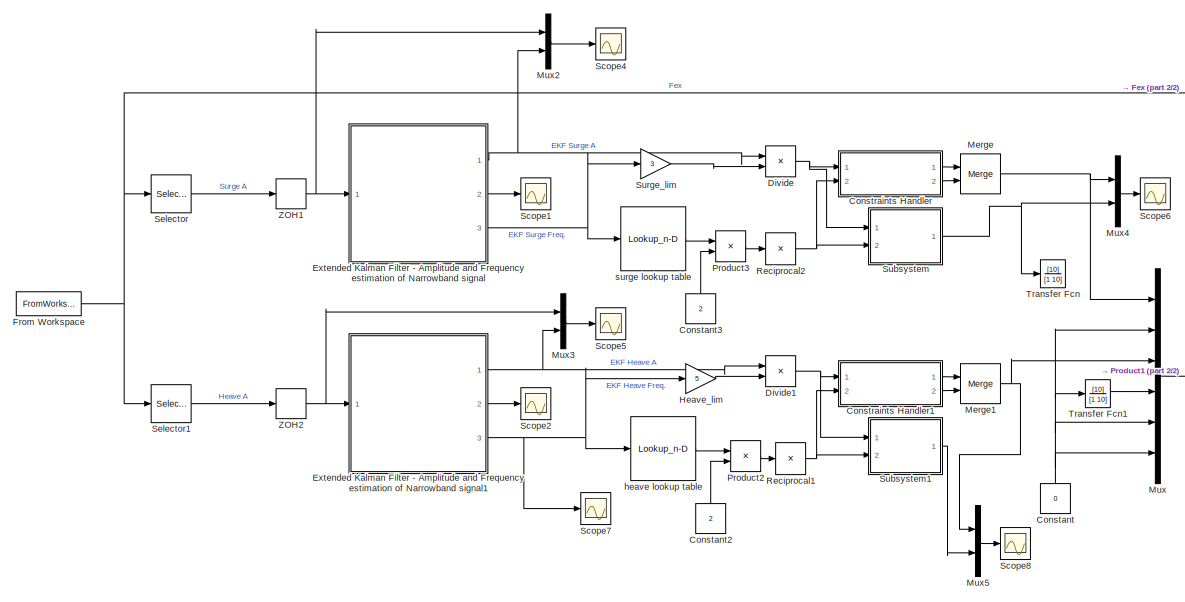
[diagram: root canvas - part 1/2, left side, full height]
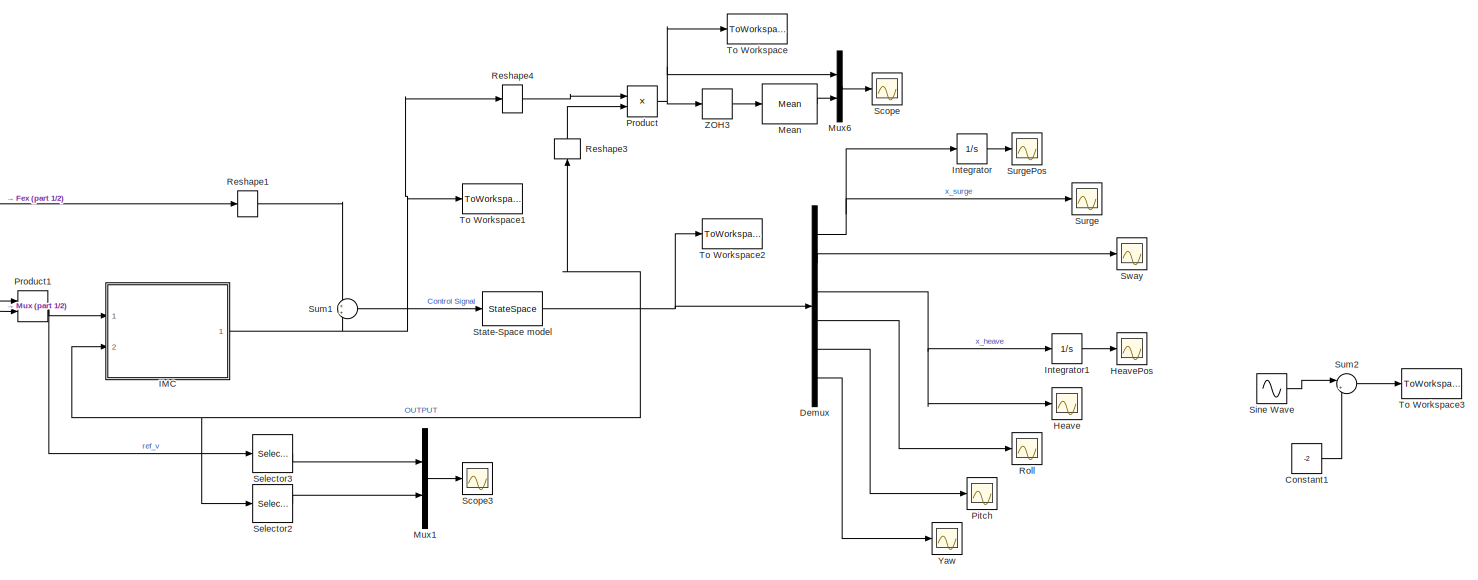
[diagram: root canvas - part 2/2, right side, full height]
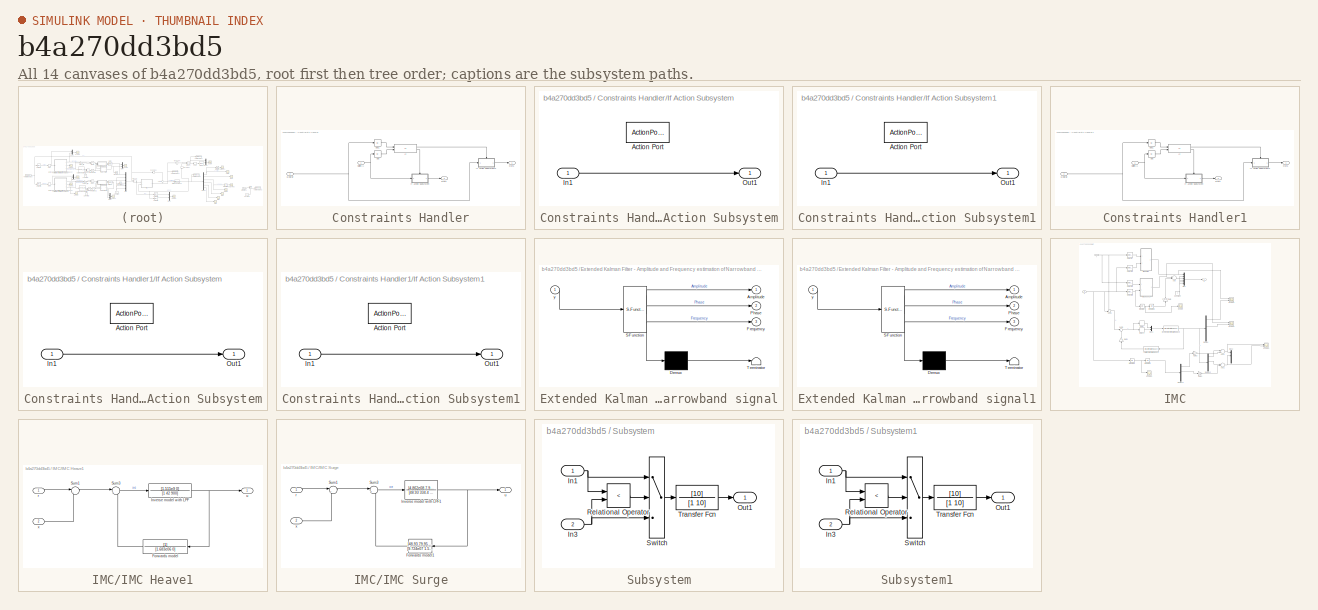
[diagram: thumbnail index - all 14 canvases of the model, root first then tree order]
MODEL slx_b4a270dd3bd5
KIND model
CONFIG AbsTol = auto
CONFIG EnableMultiTasking = on
CONFIG FixedStep = 0.02
CONFIG MaxStep = auto
CONFIG MinStep = auto
CONFIG RelTol = 1e-3
CONFIG SampleTimeConstraint = Unconstrained
CONFIG Solver = ode4
CONFIG SolverName = ode4
CONFIG StartTime = 0.0
CONFIG StopTime = 700
BLOCK [Constant] Constant
  Value = 0
BLOCK [Constant] Constant1
  Value = -2
BLOCK [Constant] Constant2
  Value = 2
BLOCK [Constant] Constant3
  Value = 2
BLOCK [SubSystem] Constraints Handler
  Ports = [2, 2]
  RequestExecContextInheritance = off
BLOCK [Inport] Constraints Handler/1//2B(w)
  IconDisplay = Port number
  Port = 2
BLOCK [Abs] Constraints Handler/Abs
  SaturateOnIntegerOverflow = off
BLOCK [Abs] Constraints Handler/Abs1
  SaturateOnIntegerOverflow = off
BLOCK [If] Constraints Handler/If
  IfExpression = u2>u1
  NumInputs = 2
  Ports = [2, 2]
BLOCK [SubSystem] Constraints Handler/If Action Subsystem
  Ports = [1, 1, 0, 0, 0, 0, 0, 1]
  RequestExecContextInheritance = off
  TreatAsAtomicUnit = on
BLOCK [ActionPort] Constraints Handler/If Action Subsystem/Action Port
  ActionType = else
BLOCK [Inport] Constraints Handler/If Action Subsystem/In1
  IconDisplay = Port number
BLOCK [Outport] Constraints Handler/If Action Subsystem/Out1
  IconDisplay = Port number
BLOCK [SubSystem] Constraints Handler/If Action Subsystem1
  Ports = [1, 1, 0, 0, 0, 0, 0, 1]
  RequestExecContextInheritance = off
  TreatAsAtomicUnit = on
BLOCK [ActionPort] Constraints Handler/If Action Subsystem1/Action Port
  ActionType = then
BLOCK [Inport] Constraints Handler/If Action Subsystem1/In1
  IconDisplay = Port number
BLOCK [Outport] Constraints Handler/If Action Subsystem1/Out1
  IconDisplay = Port number
BLOCK [Outport] Constraints Handler/Out1
  IconDisplay = Port number
BLOCK [Outport] Constraints Handler/Out2
  IconDisplay = Port number
  Port = 2
BLOCK [Inport] Constraints Handler/wXlim//A
  IconDisplay = Port number
BLOCK [SubSystem] Constraints Handler1
  Ports = [2, 2]
  RequestExecContextInheritance = off
BLOCK [Inport] Constraints Handler1/1//2B(w)
  IconDisplay = Port number
  Port = 2
BLOCK [Abs] Constraints Handler1/Abs
  SaturateOnIntegerOverflow = off
BLOCK [Abs] Constraints Handler1/Abs1
  SaturateOnIntegerOverflow = off
BLOCK [If] Constraints Handler1/If
  IfExpression = u2>u1
  NumInputs = 2
  Ports = [2, 2]
BLOCK [SubSystem] Constraints Handler1/If Action Subsystem
  Ports = [1, 1, 0, 0, 0, 0, 0, 1]
  RequestExecContextInheritance = off
  TreatAsAtomicUnit = on
BLOCK [ActionPort] Constraints Handler1/If Action Subsystem/Action Port
  ActionType = else
BLOCK [Inport] Constraints Handler1/If Action Subsystem/In1
  IconDisplay = Port number
BLOCK [Outport] Constraints Handler1/If Action Subsystem/Out1
  IconDisplay = Port number
BLOCK [SubSystem] Constraints Handler1/If Action Subsystem1
  Ports = [1, 1, 0, 0, 0, 0, 0, 1]
  RequestExecContextInheritance = off
  TreatAsAtomicUnit = on
BLOCK [ActionPort] Constraints Handler1/If Action Subsystem1/Action Port
  ActionType = then
BLOCK [Inport] Constraints Handler1/If Action Subsystem1/In1
  IconDisplay = Port number
BLOCK [Outport] Constraints Handler1/If Action Subsystem1/Out1
  IconDisplay = Port number
BLOCK [Outport] Constraints Handler1/Out1
  IconDisplay = Port number
BLOCK [Outport] Constraints Handler1/Out2
  IconDisplay = Port number
  Port = 2
BLOCK [Inport] Constraints Handler1/wXlim//A
  IconDisplay = Port number
BLOCK [Demux] Demux
  DisplayOption = bar
  Outputs = 6
  Ports = [1, 6]
BLOCK [Product] Divide
  InputSameDT = off
  Inputs = /*
  OutDataTypeStr = Inherit: Inherit via internal rule
  Ports = [2, 1]
  RndMeth = Floor
  SaturateOnIntegerOverflow = off
BLOCK [Product] Divide1
  InputSameDT = off
  Inputs = /*
  OutDataTypeStr = Inherit: Inherit via internal rule
  Ports = [2, 1]
  RndMeth = Floor
  SaturateOnIntegerOverflow = off
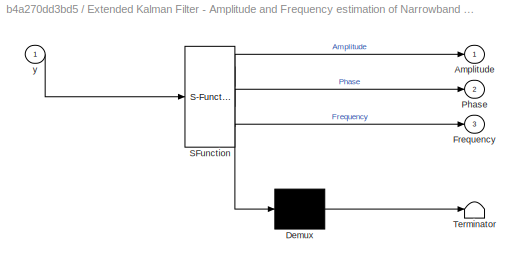
BLOCK [SubSystem] Extended Kalman Filter - Amplitude and Frequency estimation of Narrowband signal
  ErrorFcn = Stateflow.Translate.translate
  PermitHierarchicalResolution = ExplicitOnly
  Ports = [1, 3]
  RequestExecContextInheritance = off
  SFBlockType = MATLAB Function
  TreatAsAtomicUnit = on
BLOCK [Demux] Extended Kalman Filter - Amplitude and Frequency estimation of Narrowband signal/ Demux 
  Outputs = 1
  Ports = [1, 1]
BLOCK [S-Function] Extended Kalman Filter - Amplitude and Frequency estimation of Narrowband signal/ SFunction 
  EnableBusSupport = on
  FunctionName = sf_sfun
  PortCounts = [1 4]
  Ports = [1, 4]
  SFcnIsStateOwnerBlock = off
  SFunctionDeploymentMode = off
  Tag = Stateflow S-Function ANDY_position_control 1
BLOCK [Terminator] Extended Kalman Filter - Amplitude and Frequency estimation of Narrowband signal/ Terminator 
BLOCK [Outport] Extended Kalman Filter - Amplitude and Frequency estimation of Narrowband signal/Amplitude
  IconDisplay = Port number
BLOCK [Outport] Extended Kalman Filter - Amplitude and Frequency estimation of Narrowband signal/Frequency
  IconDisplay = Port number
  Port = 3
BLOCK [Outport] Extended Kalman Filter - Amplitude and Frequency estimation of Narrowband signal/Phase
  IconDisplay = Port number
  Port = 2
BLOCK [Inport] Extended Kalman Filter - Amplitude and Frequency estimation of Narrowband signal/y
  IconDisplay = Port number
BLOCK [SubSystem] Extended Kalman Filter - Amplitude and Frequency estimation of Narrowband signal1
  ErrorFcn = Stateflow.Translate.translate
  PermitHierarchicalResolution = ExplicitOnly
  Ports = [1, 3]
  RequestExecContextInheritance = off
  SFBlockType = MATLAB Function
  TreatAsAtomicUnit = on
BLOCK [Demux] Extended Kalman Filter - Amplitude and Frequency estimation of Narrowband signal1/ Demux 
  Outputs = 1
  Ports = [1, 1]
BLOCK [S-Function] Extended Kalman Filter - Amplitude and Frequency estimation of Narrowband signal1/ SFunction 
  EnableBusSupport = on
  FunctionName = sf_sfun
  PortCounts = [1 4]
  Ports = [1, 4]
  SFcnIsStateOwnerBlock = off
  SFunctionDeploymentMode = off
  Tag = Stateflow S-Function ANDY_position_control 2
BLOCK [Terminator] Extended Kalman Filter - Amplitude and Frequency estimation of Narrowband signal1/ Terminator 
BLOCK [Outport] Extended Kalman Filter - Amplitude and Frequency estimation of Narrowband signal1/Amplitude
  IconDisplay = Port number
BLOCK [Outport] Extended Kalman Filter - Amplitude and Frequency estimation of Narrowband signal1/Frequency
  IconDisplay = Port number
  Port = 3
BLOCK [Outport] Extended Kalman Filter - Amplitude and Frequency estimation of Narrowband signal1/Phase
  IconDisplay = Port number
  Port = 2
BLOCK [Inport] Extended Kalman Filter - Amplitude and Frequency estimation of Narrowband signal1/y
  IconDisplay = Port number
BLOCK [FromWorkspace] From Workspace
  SampleTime = 0
  VariableName = fex
  ZeroCross = on
BLOCK [Scope] Heave
  Floating = off
  NumInputPorts = 1
  Ports = [1]
  ScopeSpecificationString = Simulink.scopes.TimeScopeBlockCfg('CurrentConfiguration', extmgr.ConfigurationSet(extmgr.Configuration('Core','General UI',true),extmgr.Configuration('Core','Source UI',true),extmgr.Configuration('Sources','WiredSimulink',true,'DataLoggingVariableName','ScopeData1'),extmgr.Configuration('Visuals','Time Domain',true,'SerializedDisplays',{struct('MinYLimReal','-2.24543','MaxYLimReal','1.97438','YLab...<+1441ch>
BLOCK [Scope] HeavePos
  Floating = off
  NumInputPorts = 1
  Ports = [1]
  ScopeSpecificationString = Simulink.scopes.TimeScopeBlockCfg('CurrentConfiguration', extmgr.ConfigurationSet(extmgr.Configuration('Core','General UI',true),extmgr.Configuration('Core','Source UI',true),extmgr.Configuration('Sources','WiredSimulink',true,'DataLoggingVariableName','ScopeData1'),extmgr.Configuration('Visuals','Time Domain',true,'SerializedDisplays',{struct('MinYLimReal','-7.23213','MaxYLimReal','7.43866','YLab...<+1447ch>
BLOCK [Gain] Heave_lim
  Gain = 5
  OutDataTypeStr = Inherit: Inherit via internal rule
  ParamDataTypeStr = Inherit: Inherit via internal rule
  SaturateOnIntegerOverflow = off
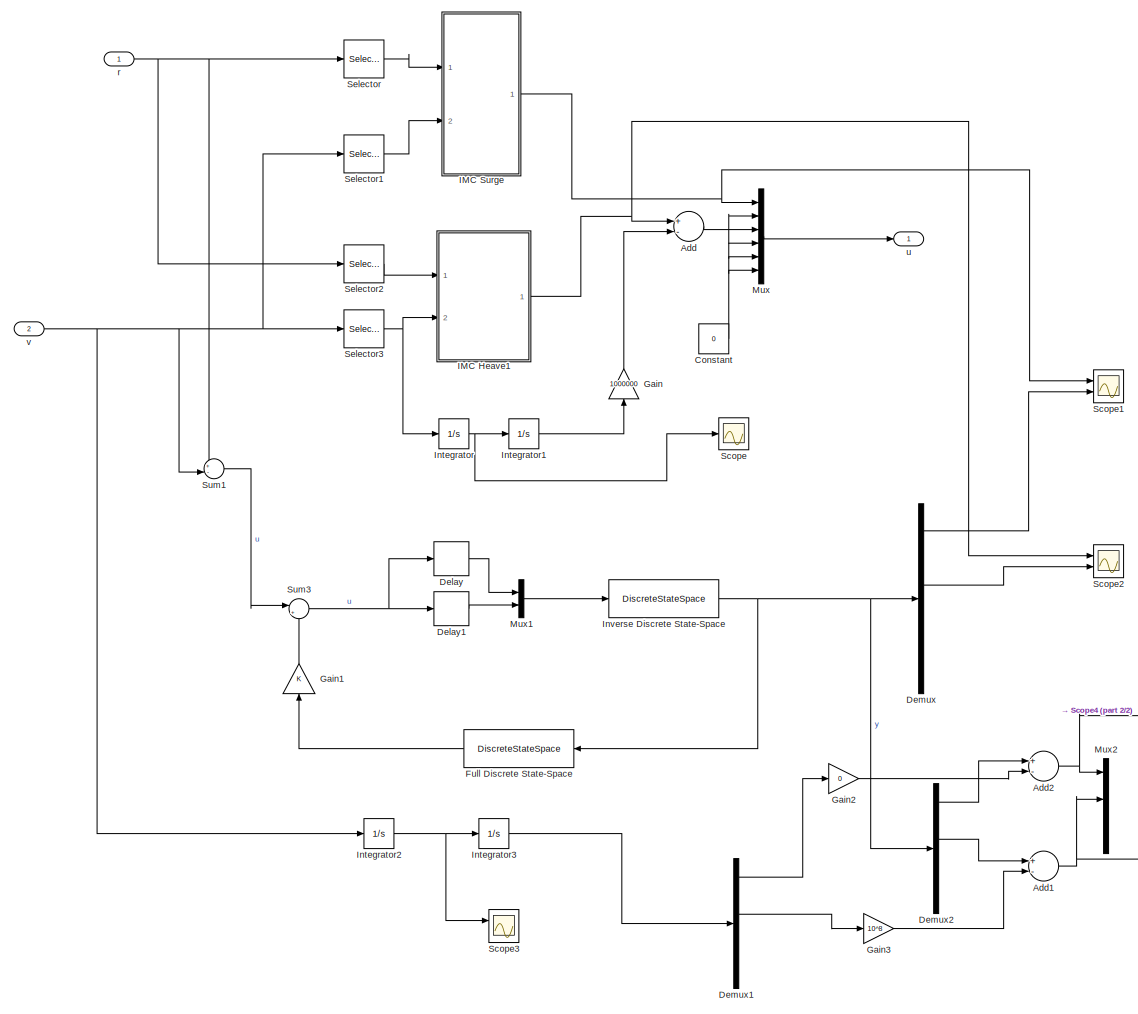
[diagram: IMC - part 1/2, most of the canvas]
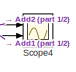
[diagram: IMC - part 2/2, bottom right region]
BLOCK [SubSystem] IMC
  Ports = [2, 1]
  RequestExecContextInheritance = off
BLOCK [Sum] IMC/Add
  InputSameDT = off
  Inputs = +-
  OutDataTypeStr = Inherit: Inherit via internal rule
  Ports = [2, 1]
  SaturateOnIntegerOverflow = off
BLOCK [Sum] IMC/Add1
  InputSameDT = off
  Inputs = +-
  OutDataTypeStr = Inherit: Inherit via internal rule
  Ports = [2, 1]
  SaturateOnIntegerOverflow = off
BLOCK [Sum] IMC/Add2
  InputSameDT = off
  Inputs = +-
  OutDataTypeStr = Inherit: Inherit via internal rule
  Ports = [2, 1]
  SaturateOnIntegerOverflow = off
BLOCK [Constant] IMC/Constant
  Value = 0
BLOCK [Delay] IMC/Delay
  DelayLength = 1
  InitialCondition = 0
  InputPortMap = u0
  Ports = [1, 1]
BLOCK [Delay] IMC/Delay1
  DelayLength = 0
  InitialCondition = 0
  InputPortMap = u0
  Ports = [1, 1]
BLOCK [Demux] IMC/Demux
  DisplayOption = bar
  Outputs = 6
  Ports = [1, 6]
BLOCK [Demux] IMC/Demux1
  DisplayOption = bar
  Outputs = 6
  Ports = [1, 6]
BLOCK [Demux] IMC/Demux2
  DisplayOption = bar
  Outputs = 6
  Ports = [1, 6]
BLOCK [DiscreteStateSpace] IMC/Full Discrete State-Space
  A = SS_discrete.A
  B = SS_discrete.B
  C = SS_discrete.C
  D = SS_discrete.D
  SampleTime = -1
BLOCK [Gain] IMC/Gain
  Gain = 1000000
  OutDataTypeStr = Inherit: Inherit via internal rule
  ParamDataTypeStr = Inherit: Inherit via internal rule
  SaturateOnIntegerOverflow = off
BLOCK [Gain] IMC/Gain1
  OutDataTypeStr = Inherit: Inherit via internal rule
  ParamDataTypeStr = Inherit: Inherit via internal rule
  SaturateOnIntegerOverflow = off
BLOCK [Gain] IMC/Gain2
  Gain = 0
  OutDataTypeStr = Inherit: Inherit via internal rule
  ParamDataTypeStr = Inherit: Inherit via internal rule
  SaturateOnIntegerOverflow = off
BLOCK [Gain] IMC/Gain3
  Gain = 10^8
  OutDataTypeStr = Inherit: Inherit via internal rule
  ParamDataTypeStr = Inherit: Inherit via internal rule
  SaturateOnIntegerOverflow = off
BLOCK [SubSystem] IMC/IMC Heave1
  Ports = [2, 1]
  RequestExecContextInheritance = off
BLOCK [TransferFcn] IMC/IMC Heave1/Forwards model
  Denominator = [1.683e06 0]
BLOCK [TransferFcn] IMC/IMC Heave1/Inverse model with LPF
  Denominator = [1 42 900]
  Numerator = [1.515e9 0]
BLOCK [Sum] IMC/IMC Heave1/Sum1
  IconShape = round
  Inputs = |+-
  Ports = [2, 1]
BLOCK [Sum] IMC/IMC Heave1/Sum3
  IconShape = round
  Inputs = |++
  Ports = [2, 1]
BLOCK [Inport] IMC/IMC Heave1/r
  IconDisplay = Port number
BLOCK [Outport] IMC/IMC Heave1/u
  IconDisplay = Port number
BLOCK [Inport] IMC/IMC Heave1/x
  IconDisplay = Port number
  Port = 2
BLOCK [SubSystem] IMC/IMC Surge
  Ports = [2, 1]
  RequestExecContextInheritance = off
BLOCK [TransferFcn] IMC/IMC Surge/Forwards model1
  Denominator = [9.724e07 1.592e08 5.128e08 4.252e08 6.336e08 2.016e08 2.093e08]
  Numerator = [48.93 79.95 216.2 144.3 149.5 0]
BLOCK [TransferFcn] IMC/IMC Surge/Inverse model with LPF1
  Denominator = [48.93 334.4 680.9 1349 1116 921.6 149.5 0]
  Numerator = [4.862e08 7.959e08 2.564e09 2.126e09 3.168e09 1.008e09 1.046e09 0]
BLOCK [Sum] IMC/IMC Surge/Sum1
  IconShape = round
  Inputs = |+-
  Ports = [2, 1]
BLOCK [Sum] IMC/IMC Surge/Sum3
  IconShape = round
  Inputs = |++
  Ports = [2, 1]
BLOCK [Inport] IMC/IMC Surge/r
  IconDisplay = Port number
BLOCK [Outport] IMC/IMC Surge/u
  IconDisplay = Port number
BLOCK [Inport] IMC/IMC Surge/x
  IconDisplay = Port number
  Port = 2
BLOCK [Integrator] IMC/Integrator
  Ports = [1, 1]
BLOCK [Integrator] IMC/Integrator1
  Ports = [1, 1]
BLOCK [Integrator] IMC/Integrator2
  Ports = [1, 1]
BLOCK [Integrator] IMC/Integrator3
  Ports = [1, 1]
BLOCK [DiscreteStateSpace] IMC/Inverse Discrete State-Space
  A = SS_inverse.A
  B = SS_inverse.B
  C = SS_inverse.C
  D = SS_inverse.D
  SampleTime = -1
BLOCK [Mux] IMC/Mux
  DisplayOption = bar
  Inputs = 6
  Ports = [6, 1]
BLOCK [Mux] IMC/Mux1
  DisplayOption = bar
  Inputs = 2
  Ports = [2, 1]
BLOCK [Mux] IMC/Mux2
  DisplayOption = bar
  Inputs = 6
  Ports = [6, 1]
BLOCK [Scope] IMC/Scope
  Floating = off
  NumInputPorts = 1
  Ports = [1]
  ScopeSpecificationString = Simulink.scopes.TimeScopeBlockCfg('CurrentConfiguration', extmgr.ConfigurationSet(extmgr.Configuration('Core','General UI',true),extmgr.Configuration('Core','Source UI',true),extmgr.Configuration('Sources','WiredSimulink',true,'DataLoggingVariableName','ScopeData1'),extmgr.Configuration('Visuals','Time Domain',true,'SerializedDisplays',{struct('MinYLimReal','-7.23213','MaxYLimReal','7.43866','YLab...<+1369ch>
BLOCK [Scope] IMC/Scope1
  Floating = off
  NumInputPorts = 2
  Ports = [2]
  ScopeSpecificationString = Simulink.scopes.TimeScopeBlockCfg('CurrentConfiguration', extmgr.ConfigurationSet(extmgr.Configuration('Core','General UI',true),extmgr.Configuration('Core','Source UI',true),extmgr.Configuration('Sources','WiredSimulink',true,'DataLoggingVariableName','ScopeData1'),extmgr.Configuration('Visuals','Time Domain',true,'SerializedDisplays',{struct('MinYLimReal','-16694056104.24837','MaxYLimReal','1079...<+1518ch>
BLOCK [Scope] IMC/Scope2
  Floating = off
  NumInputPorts = 2
  Ports = [2]
  ScopeSpecificationString = Simulink.scopes.TimeScopeBlockCfg('CurrentConfiguration', extmgr.ConfigurationSet(extmgr.Configuration('Core','General UI',true),extmgr.Configuration('Core','Source UI',true),extmgr.Configuration('Sources','WiredSimulink',true,'DataLoggingVariableName','ScopeData2'),extmgr.Configuration('Visuals','Time Domain',true,'SerializedDisplays',{struct('MinYLimReal','-237250496500.61111','MaxYLimReal','264...<+1521ch>
BLOCK [Scope] IMC/Scope3
  Floating = off
  NumInputPorts = 2
  Ports = [2]
  ScopeSpecificationString = Simulink.scopes.TimeScopeBlockCfg('CurrentConfiguration', extmgr.ConfigurationSet(extmgr.Configuration('Core','General UI',true),extmgr.Configuration('Core','Source UI',true),extmgr.Configuration('Sources','WiredSimulink',true,'DataLoggingVariableName','ScopeData3'),extmgr.Configuration('Visuals','Time Domain',true,'SerializedDisplays',{struct('MinYLimReal','-7.23213','MaxYLimReal','7.43866','YLab...<+1522ch>
BLOCK [Scope] IMC/Scope4
  Floating = off
  NumInputPorts = 2
  Ports = [2]
  ScopeSpecificationString = Simulink.scopes.TimeScopeBlockCfg('CurrentConfiguration', extmgr.ConfigurationSet(extmgr.Configuration('Core','General UI',true),extmgr.Configuration('Core','Source UI',true),extmgr.Configuration('Sources','WiredSimulink',true,'DataLoggingVariableName','ScopeData4'),extmgr.Configuration('Visuals','Time Domain',true,'SerializedDisplays',{struct('MinYLimReal','-246543197203.57385','MaxYLimReal','133...<+1514ch>
BLOCK [Selector] IMC/Selector
  IndexOptions = Index vector (dialog)
  Indices = [1]
  InputPortWidth = 6
  OutputSizes = 1
  Ports = [1, 1]
BLOCK [Selector] IMC/Selector1
  IndexOptions = Index vector (dialog)
  Indices = [1]
  InputPortWidth = 6
  OutputSizes = 1
  Ports = [1, 1]
BLOCK [Selector] IMC/Selector2
  IndexOptions = Index vector (dialog)
  Indices = [3]
  InputPortWidth = 6
  OutputSizes = 1
  Ports = [1, 1]
BLOCK [Selector] IMC/Selector3
  IndexOptions = Index vector (dialog)
  Indices = [3]
  InputPortWidth = 6
  OutputSizes = 1
  Ports = [1, 1]
BLOCK [Sum] IMC/Sum1
  IconShape = round
  InputSameDT = off
  Inputs = +-|
  OutDataTypeStr = Inherit: Inherit via internal rule
  Ports = [2, 1]
  SaturateOnIntegerOverflow = off
BLOCK [Sum] IMC/Sum3
  IconShape = round
  InputSameDT = off
  Inputs = |++
  OutDataTypeStr = Inherit: Inherit via internal rule
  Ports = [2, 1]
  SaturateOnIntegerOverflow = off
BLOCK [Inport] IMC/r
  IconDisplay = Port number
BLOCK [Outport] IMC/u
  IconDisplay = Port number
BLOCK [Inport] IMC/v
  IconDisplay = Port number
  Port = 2
BLOCK [Integrator] Integrator
  Ports = [1, 1]
BLOCK [Integrator] Integrator1
  Ports = [1, 1]
BLOCK [Reference] Mean  REF=dspstat3/Mean
  Ports = [1, 1]
  SourceBlock = dspstat3/Mean
  SourceProductBaseCode = DS
  SourceProductName = DSP System Toolbox
  SourceType = Mean
  UserDataPersistent = on
BLOCK [Merge] Merge
  Ports = [2, 1]
BLOCK [Merge] Merge1
  Ports = [2, 1]
BLOCK [Mux] Mux
  DisplayOption = bar
  Inputs = 6
  Ports = [6, 1]
BLOCK [Mux] Mux1
  DisplayOption = bar
  Inputs = 2
  Ports = [2, 1]
BLOCK [Mux] Mux2
  DisplayOption = bar
  Inputs = 2
  Ports = [2, 1]
BLOCK [Mux] Mux3
  DisplayOption = bar
  Inputs = 2
  Ports = [2, 1]
BLOCK [Mux] Mux4
  DisplayOption = bar
  Inputs = 2
  Ports = [2, 1]
BLOCK [Mux] Mux5
  DisplayOption = bar
  Inputs = 2
  Ports = [2, 1]
BLOCK [Mux] Mux6
  DisplayOption = bar
  Inputs = 2
  Ports = [2, 1]
BLOCK [Scope] Pitch
  Floating = off
  NumInputPorts = 1
  Ports = [1]
  ScopeSpecificationString = Simulink.scopes.TimeScopeBlockCfg('CurrentConfiguration', extmgr.ConfigurationSet(extmgr.Configuration('Core','General UI',true),extmgr.Configuration('Core','Source UI',true),extmgr.Configuration('Sources','WiredSimulink',true,'DataLoggingVariableName','ScopeData2'),extmgr.Configuration('Visuals','Time Domain',true,'SerializedDisplays',{struct('MinYLimReal','-0.00595','MaxYLimReal','0.00682','YLab...<+1410ch>
BLOCK [Product] Product
  InputSameDT = off
  Multiplication = Matrix(*)
  OutDataTypeStr = Inherit: Inherit via internal rule
  Ports = [2, 1]
  RndMeth = Floor
  SaturateOnIntegerOverflow = off
BLOCK [Product] Product1
  InputSameDT = off
  OutDataTypeStr = Inherit: Inherit via internal rule
  Ports = [2, 1]
  RndMeth = Floor
  SaturateOnIntegerOverflow = off
BLOCK [Product] Product2
  InputSameDT = off
  OutDataTypeStr = Inherit: Inherit via internal rule
  Ports = [2, 1]
  RndMeth = Floor
  SaturateOnIntegerOverflow = off
BLOCK [Product] Product3
  InputSameDT = off
  OutDataTypeStr = Inherit: Inherit via internal rule
  Ports = [2, 1]
  RndMeth = Floor
  SaturateOnIntegerOverflow = off
BLOCK [Product] Reciprocal1
  InputSameDT = off
  Inputs = /
  OutDataTypeStr = Inherit: Inherit via internal rule
  Ports = [1, 1]
  RndMeth = Floor
  SaturateOnIntegerOverflow = off
BLOCK [Product] Reciprocal2
  InputSameDT = off
  Inputs = /
  OutDataTypeStr = Inherit: Inherit via internal rule
  Ports = [1, 1]
  RndMeth = Floor
  SaturateOnIntegerOverflow = off
BLOCK [Reshape] Reshape1
  OutputDimensionality = Column vector (2-D)
  Ports = [1, 1]
BLOCK [Reshape] Reshape3
  OutputDimensionality = Column vector (2-D)
  Ports = [1, 1]
BLOCK [Reshape] Reshape4
  OutputDimensionality = Row vector (2-D)
  Ports = [1, 1]
BLOCK [Scope] Roll
  Floating = off
  NumInputPorts = 1
  Ports = [1]
  ScopeSpecificationString = Simulink.scopes.TimeScopeBlockCfg('CurrentConfiguration', extmgr.ConfigurationSet(extmgr.Configuration('Core','General UI',true),extmgr.Configuration('Core','Source UI',true),extmgr.Configuration('Sources','WiredSimulink',true,'DataLoggingVariableName','ScopeData2'),extmgr.Configuration('Visuals','Time Domain',true,'SerializedDisplays',{struct('MinYLimReal','-0.01689','MaxYLimReal','0.01142','YLab...<+1385ch>
BLOCK [Scope] Scope
  Floating = off
  NumInputPorts = 1
  Ports = [1]
  ScopeSpecificationString = Simulink.scopes.TimeScopeBlockCfg('CurrentConfiguration', extmgr.ConfigurationSet(extmgr.Configuration('Core','General UI',true),extmgr.Configuration('Core','Source UI',true),extmgr.Configuration('Sources','WiredSimulink',true,'DataLoggingVariableName','ScopeData1'),extmgr.Configuration('Visuals','Time Domain',true,'SerializedDisplays',{struct('MinYLimReal','-15685283.61877','MaxYLimReal','1171424...<+1530ch>
BLOCK [Scope] Scope1
  Floating = off
  NumInputPorts = 1
  Ports = [1]
  ScopeSpecificationString = Simulink.scopes.TimeScopeBlockCfg('CurrentConfiguration', extmgr.ConfigurationSet(extmgr.Configuration('Core','General UI',true),extmgr.Configuration('Core','Source UI',true),extmgr.Configuration('Sources','WiredSimulink',true,'DataLoggingVariableName','ScopeData1','DataLoggingSaveFormat','StructureWithTime','DataLoggingDecimation','1','DataLoggingDecimateData',true),extmgr.Configuration('Visuals'...<+1861ch>
BLOCK [Scope] Scope2
  Floating = off
  NumInputPorts = 1
  Ports = [1]
  ScopeSpecificationString = Simulink.scopes.TimeScopeBlockCfg('CurrentConfiguration', extmgr.ConfigurationSet(extmgr.Configuration('Core','General UI',true),extmgr.Configuration('Core','Source UI',true),extmgr.Configuration('Sources','WiredSimulink',true,'DataLoggingVariableName','ScopeData1','DataLoggingSaveFormat','StructureWithTime','DataLoggingDecimation','1','DataLoggingDecimateData',true),extmgr.Configuration('Visuals'...<+1861ch>
BLOCK [Scope] Scope3
  Floating = off
  NumInputPorts = 1
  Ports = [1]
  ScopeSpecificationString = Simulink.scopes.TimeScopeBlockCfg('CurrentConfiguration', extmgr.ConfigurationSet(extmgr.Configuration('Core','General UI',true),extmgr.Configuration('Core','Source UI',true),extmgr.Configuration('Sources','WiredSimulink',true,'DataLoggingVariableName','ScopeData1'),extmgr.Configuration('Visuals','Time Domain',true,'SerializedDisplays',{struct('MinYLimReal','-3.63088','MaxYLimReal','3.05574','YLab...<+1462ch>
BLOCK [Scope] Scope4
  Floating = off
  NumInputPorts = 1
  Ports = [1]
  ScopeSpecificationString = Simulink.scopes.TimeScopeBlockCfg('CurrentConfiguration', extmgr.ConfigurationSet(extmgr.Configuration('Core','General UI',true),extmgr.Configuration('Core','Source UI',true),extmgr.Configuration('Sources','WiredSimulink',true,'DataLoggingVariableName','ScopeData2','DataLoggingSaveFormat','StructureWithTime','DataLoggingDecimation','1','DataLoggingDecimateData',true),extmgr.Configuration('Visuals'...<+1793ch>
BLOCK [Scope] Scope5
  Floating = off
  NumInputPorts = 1
  Ports = [1]
  ScopeSpecificationString = Simulink.scopes.TimeScopeBlockCfg('CurrentConfiguration', extmgr.ConfigurationSet(extmgr.Configuration('Core','General UI',true),extmgr.Configuration('Core','Source UI',true),extmgr.Configuration('Sources','WiredSimulink',true,'DataLoggingVariableName','ScopeData3','DataLoggingSaveFormat','StructureWithTime','DataLoggingDecimation','1','DataLoggingDecimateData',true),extmgr.Configuration('Visuals'...<+1793ch>
BLOCK [Scope] Scope6
  Floating = off
  NumInputPorts = 1
  Ports = [1]
  ScopeSpecificationString = Simulink.scopes.TimeScopeBlockCfg('CurrentConfiguration', extmgr.ConfigurationSet(extmgr.Configuration('Core','General UI',true),extmgr.Configuration('Core','Source UI',true),extmgr.Configuration('Sources','WiredSimulink',true,'DataLoggingVariableName','ScopeData4','DataLoggingSaveFormat','StructureWithTime','DataLoggingDecimation','1','DataLoggingDecimateData',true),extmgr.Configuration('Visuals'...<+1761ch>
BLOCK [Scope] Scope7
  Floating = off
  NumInputPorts = 1
  Ports = [1]
  ScopeSpecificationString = Simulink.scopes.TimeScopeBlockCfg('CurrentConfiguration', extmgr.ConfigurationSet(extmgr.Configuration('Core','General UI',true),extmgr.Configuration('Core','Source UI',true),extmgr.Configuration('Sources','WiredSimulink',true,'DataLoggingVariableName','ScopeData5','DataLoggingSaveFormat','StructureWithTime','DataLoggingDecimation','1','DataLoggingDecimateData',true),extmgr.Configuration('Visuals'...<+1744ch>
BLOCK [Scope] Scope8
  Floating = off
  NumInputPorts = 1
  Ports = [1]
  ScopeSpecificationString = Simulink.scopes.TimeScopeBlockCfg('CurrentConfiguration', extmgr.ConfigurationSet(extmgr.Configuration('Core','General UI',true),extmgr.Configuration('Core','Source UI',true),extmgr.Configuration('Sources','WiredSimulink',true,'DataLoggingVariableName','ScopeData6','DataLoggingSaveFormat','StructureWithTime','DataLoggingDecimation','1','DataLoggingDecimateData',true),extmgr.Configuration('Visuals'...<+1764ch>
BLOCK [Selector] Selector
  IndexOptions = Index vector (dialog)
  Indices = 1
  InputPortWidth = 6
  OutputSizes = 1
  Ports = [1, 1]
BLOCK [Selector] Selector1
  IndexOptions = Index vector (dialog)
  Indices = 3
  InputPortWidth = 6
  OutputSizes = 1
  Ports = [1, 1]
BLOCK [Selector] Selector2
  IndexOptions = Index vector (dialog)
  Indices = [1 3]
  InputPortWidth = 6
  OutputSizes = 1
  Ports = [1, 1]
BLOCK [Selector] Selector3
  IndexOptions = Index vector (dialog)
  Indices = [1 3]
  InputPortWidth = 6
  OutputSizes = 1
  Ports = [1, 1]
BLOCK [Sin] Sine Wave
  Ports = [0, 1]
  SampleTime = 0
BLOCK [StateSpace] State-Space model
  A = SS_full.A
  B = SS_full.B
  C = SS_full.C
  D = SS_full.D
  InitialCondition = 0
  Ports = [1, 1]
BLOCK [SubSystem] Subsystem
  Ports = [2, 1]
  RequestExecContextInheritance = off
BLOCK [Inport] Subsystem/In1
  IconDisplay = Port number
BLOCK [Inport] Subsystem/In3
  IconDisplay = Port number
  Port = 2
BLOCK [Outport] Subsystem/Out1
  IconDisplay = Port number
BLOCK [RelationalOperator] Subsystem/Relational Operator
  InputSameDT = off
  Operator = <
  OutDataTypeStr = boolean
  Ports = [2, 1]
BLOCK [Switch] Subsystem/Switch
  Criteria = u2 > Threshold
  InputSameDT = off
  SaturateOnIntegerOverflow = off
BLOCK [TransferFcn] Subsystem/Transfer Fcn
  Denominator = [1 10]
  Numerator = [10]
BLOCK [SubSystem] Subsystem1
  Ports = [2, 1]
  RequestExecContextInheritance = off
BLOCK [Inport] Subsystem1/In1
  IconDisplay = Port number
BLOCK [Inport] Subsystem1/In3
  IconDisplay = Port number
  Port = 2
BLOCK [Outport] Subsystem1/Out1
  IconDisplay = Port number
BLOCK [RelationalOperator] Subsystem1/Relational Operator
  InputSameDT = off
  Operator = <
  OutDataTypeStr = boolean
  Ports = [2, 1]
BLOCK [Switch] Subsystem1/Switch
  Criteria = u2 > Threshold
  InputSameDT = off
  SaturateOnIntegerOverflow = off
BLOCK [TransferFcn] Subsystem1/Transfer Fcn
  Denominator = [1 10]
  Numerator = [10]
BLOCK [Sum] Sum1
  IconShape = round
  InputSameDT = off
  OutDataTypeStr = Inherit: Inherit via internal rule
  Ports = [2, 1]
  SaturateOnIntegerOverflow = off
BLOCK [Sum] Sum2
  IconShape = round
  InputSameDT = off
  Inputs = |++
  OutDataTypeStr = Inherit: Inherit via internal rule
  Ports = [2, 1]
  SaturateOnIntegerOverflow = off
BLOCK [Scope] Surge
  Floating = off
  NumInputPorts = 1
  Ports = [1]
  ScopeSpecificationString = Simulink.scopes.TimeScopeBlockCfg('CurrentConfiguration', extmgr.ConfigurationSet(extmgr.Configuration('Core','General UI',true),extmgr.Configuration('Core','Source UI',true),extmgr.Configuration('Sources','WiredSimulink',true),extmgr.Configuration('Visuals','Time Domain',true,'SerializedDisplays',{struct('MinYLimReal','-4.03001','MaxYLimReal','3.94243','YLabelReal','','MinYLimMag','0.00000','MaxY...<+1404ch>
BLOCK [Scope] SurgePos
  Floating = off
  NumInputPorts = 1
  Ports = [1]
  ScopeSpecificationString = Simulink.scopes.TimeScopeBlockCfg('CurrentConfiguration', extmgr.ConfigurationSet(extmgr.Configuration('Core','General UI',true),extmgr.Configuration('Core','Source UI',true),extmgr.Configuration('Sources','WiredSimulink',true,'DataLoggingVariableName','ScopeData2'),extmgr.Configuration('Visuals','Time Domain',true,'SerializedDisplays',{struct('MinYLimReal','-6.60203','MaxYLimReal','13.87755','YLa...<+1450ch>
BLOCK [Gain] Surge_lim
  Gain = 3
  OutDataTypeStr = Inherit: Inherit via internal rule
  ParamDataTypeStr = Inherit: Inherit via internal rule
  SaturateOnIntegerOverflow = off
BLOCK [Scope] Sway
  Floating = off
  NumInputPorts = 1
  Ports = [1]
  ScopeSpecificationString = Simulink.scopes.TimeScopeBlockCfg('CurrentConfiguration', extmgr.ConfigurationSet(extmgr.Configuration('Core','General UI',true),extmgr.Configuration('Core','Source UI',true),extmgr.Configuration('Sources','WiredSimulink',true,'DataLoggingVariableName','ScopeData1'),extmgr.Configuration('Visuals','Time Domain',true,'SerializedDisplays',{struct('MinYLimReal','-0.44361','MaxYLimReal','0.59812','YLab...<+1385ch>
BLOCK [ToWorkspace] To Workspace
  FixptAsFi = on
  MaxDataPoints = inf
  Ports = [1]
  SampleTime = -1
  Save2DSignal = 3-D array (concatenate along third dimension)
  SaveFormat = Timeseries
  VariableName = totalPower
BLOCK [ToWorkspace] To Workspace1
  FixptAsFi = on
  MaxDataPoints = inf
  Ports = [1]
  SampleTime = -1
  Save2DSignal = 3-D array (concatenate along third dimension)
  SaveFormat = Timeseries
  VariableName = controlSignal
BLOCK [ToWorkspace] To Workspace2
  FixptAsFi = on
  MaxDataPoints = inf
  Ports = [1]
  SampleTime = -1
  Save2DSignal = 3-D array (concatenate along third dimension)
  SaveFormat = Timeseries
  VariableName = outputSignal
BLOCK [ToWorkspace] To Workspace3
  FixptAsFi = on
  MaxDataPoints = inf
  Ports = [1]
  SampleTime = -1
  Save2DSignal = 3-D array (concatenate along third dimension)
  SaveFormat = Timeseries
  VariableName = testSignal
BLOCK [TransferFcn] Transfer Fcn
  Denominator = [1 10]
  Numerator = [10]
BLOCK [TransferFcn] Transfer Fcn1
  Denominator = [1 10]
  Numerator = [10]
BLOCK [Scope] Yaw
  Floating = off
  NumInputPorts = 1
  Ports = [1]
  ScopeSpecificationString = Simulink.scopes.TimeScopeBlockCfg('CurrentConfiguration', extmgr.ConfigurationSet(extmgr.Configuration('Core','General UI',true),extmgr.Configuration('Core','Source UI',true),extmgr.Configuration('Sources','WiredSimulink',true,'DataLoggingVariableName','ScopeData3'),extmgr.Configuration('Visuals','Time Domain',true,'SerializedDisplays',{struct('MinYLimReal','-0.01023','MaxYLimReal','0.01454','YLab...<+1385ch>
BLOCK [ZeroOrderHold] ZOH1
  SampleTime = 0.02
BLOCK [ZeroOrderHold] ZOH2
  SampleTime = 0.02
BLOCK [ZeroOrderHold] ZOH3
  SampleTime = 0.02
BLOCK [Lookup_n-D] heave lookup table
  BreakpointsForDimension1 = heave.freq
  InternalRulePriority = Speed
  NumberOfTableDimensions = 1
  Ports = [1, 1]
  RndMeth = Simplest
  Table = heave.amp
BLOCK [Lookup_n-D] surge lookup table
  BreakpointsForDimension1 = surge.freq
  InternalRulePriority = Speed
  NumberOfTableDimensions = 1
  Ports = [1, 1]
  RndMeth = Simplest
  Table = surge.amp
LINE Constant1:1 -> Sum2:2
LINE Constant2:1 -> Product2:2
LINE Constant3:1 -> Product3:2
NET Constant:1 -> Mux:2, Mux:5, Mux:6, Transfer Fcn1:1
NET Constraints Handler/1//2B(w):1 -> Constraints Handler/Abs1:1, Constraints Handler/If Action Subsystem1:1
LINE Constraints Handler/Abs1:1 -> Constraints Handler/If:1
LINE Constraints Handler/Abs:1 -> Constraints Handler/If:2
LINE Constraints Handler/If Action Subsystem/In1:1 -> Constraints Handler/If Action Subsystem/Out1:1
LINE Constraints Handler/If Action Subsystem1/In1:1 -> Constraints Handler/If Action Subsystem1/Out1:1
LINE Constraints Handler/If Action Subsystem1:1 -> Constraints Handler/Out1:1
LINE Constraints Handler/If Action Subsystem:1 -> Constraints Handler/Out2:1
LINE Constraints Handler/If:1 -> Constraints Handler/If Action Subsystem1:ifaction
LINE Constraints Handler/If:2 -> Constraints Handler/If Action Subsystem:ifaction
NET Constraints Handler/wXlim//A:1 -> Constraints Handler/Abs:1, Constraints Handler/If Action Subsystem:1
NET Constraints Handler1/1//2B(w):1 -> Constraints Handler1/Abs1:1, Constraints Handler1/If Action Subsystem1:1
LINE Constraints Handler1/Abs1:1 -> Constraints Handler1/If:1
LINE Constraints Handler1/Abs:1 -> Constraints Handler1/If:2
LINE Constraints Handler1/If Action Subsystem/In1:1 -> Constraints Handler1/If Action Subsystem/Out1:1
LINE Constraints Handler1/If Action Subsystem1/In1:1 -> Constraints Handler1/If Action Subsystem1/Out1:1
LINE Constraints Handler1/If Action Subsystem1:1 -> Constraints Handler1/Out1:1
LINE Constraints Handler1/If Action Subsystem:1 -> Constraints Handler1/Out2:1
LINE Constraints Handler1/If:1 -> Constraints Handler1/If Action Subsystem1:ifaction
LINE Constraints Handler1/If:2 -> Constraints Handler1/If Action Subsystem:ifaction
NET Constraints Handler1/wXlim//A:1 -> Constraints Handler1/Abs:1, Constraints Handler1/If Action Subsystem:1
LINE Constraints Handler1:1 -> Merge1:1
LINE Constraints Handler1:2 -> Merge1:2
LINE Constraints Handler:1 -> Merge:1
LINE Constraints Handler:2 -> Merge:2
NET Demux:1 -> Integrator:1, Surge:1
LINE Demux:2 -> Sway:1
NET Demux:3 -> Heave:1, Integrator1:1
LINE Demux:4 -> Roll:1
LINE Demux:5 -> Pitch:1
LINE Demux:6 -> Yaw:1
NET Divide1:1 -> Constraints Handler1:1, Subsystem1:1
NET Divide:1 -> Constraints Handler:1, Subsystem:1
NET Extended Kalman Filter - Amplitude and Frequency estimation of Narrowband signal1:1 -> Divide1:1, Mux3:2
LINE Extended Kalman Filter - Amplitude and Frequency estimation of Narrowband signal1:2 -> Scope2:1
NET Extended Kalman Filter - Amplitude and Frequency estimation of Narrowband signal1:3 -> Heave_lim:1, Scope7:1, heave lookup table:1
NET Extended Kalman Filter - Amplitude and Frequency estimation of Narrowband signal:1 -> Divide:1, Mux2:2
LINE Extended Kalman Filter - Amplitude and Frequency estimation of Narrowband signal:2 -> Scope1:1
NET Extended Kalman Filter - Amplitude and Frequency estimation of Narrowband signal:3 -> Surge_lim:1, surge lookup table:1
NET From Workspace:1 -> Product1:1, Reshape1:1, Selector1:1, Selector:1
LINE Heave_lim:1 -> Divide1:2
NET IMC/Add1:1 -> IMC/Mux2:3, IMC/Scope4:2
NET IMC/Add2:1 -> IMC/Mux2:1, IMC/Scope4:1
LINE IMC/Add:1 -> IMC/Mux:3
NET IMC/Constant:1 -> IMC/Mux:2, IMC/Mux:4, IMC/Mux:5, IMC/Mux:6
LINE IMC/Delay1:1 -> IMC/Mux1:2
LINE IMC/Delay:1 -> IMC/Mux1:1
LINE IMC/Demux1:1 -> IMC/Gain2:1
LINE IMC/Demux1:3 -> IMC/Gain3:1
LINE IMC/Demux2:1 -> IMC/Add2:1
LINE IMC/Demux2:3 -> IMC/Add1:1
LINE IMC/Demux:1 -> IMC/Scope1:2
LINE IMC/Demux:3 -> IMC/Scope2:2
LINE IMC/Full Discrete State-Space:1 -> IMC/Gain1:1
LINE IMC/Gain1:1 -> IMC/Sum3:2
LINE IMC/Gain2:1 -> IMC/Add2:2
LINE IMC/Gain3:1 -> IMC/Add1:2
LINE IMC/Gain:1 -> IMC/Add:2
LINE IMC/IMC Heave1/Forwards model:1 -> IMC/IMC Heave1/Sum3:2
NET IMC/IMC Heave1/Inverse model with LPF:1 -> IMC/IMC Heave1/Forwards model:1, IMC/IMC Heave1/u:1
LINE IMC/IMC Heave1/Sum1:1 -> IMC/IMC Heave1/Sum3:1
LINE IMC/IMC Heave1/Sum3:1 -> IMC/IMC Heave1/Inverse model with LPF:1
LINE IMC/IMC Heave1/r:1 -> IMC/IMC Heave1/Sum1:1
LINE IMC/IMC Heave1/x:1 -> IMC/IMC Heave1/Sum1:2
NET IMC/IMC Heave1:1 -> IMC/Add:1, IMC/Scope2:1
LINE IMC/IMC Surge/Forwards model1:1 -> IMC/IMC Surge/Sum3:2
NET IMC/IMC Surge/Inverse model with LPF1:1 -> IMC/IMC Surge/Forwards model1:1, IMC/IMC Surge/u:1
LINE IMC/IMC Surge/Sum1:1 -> IMC/IMC Surge/Sum3:1
LINE IMC/IMC Surge/Sum3:1 -> IMC/IMC Surge/Inverse model with LPF1:1
LINE IMC/IMC Surge/r:1 -> IMC/IMC Surge/Sum1:1
LINE IMC/IMC Surge/x:1 -> IMC/IMC Surge/Sum1:2
NET IMC/IMC Surge:1 -> IMC/Mux:1, IMC/Scope1:1
LINE IMC/Integrator1:1 -> IMC/Gain:1
NET IMC/Integrator2:1 -> IMC/Integrator3:1, IMC/Scope3:1
LINE IMC/Integrator3:1 -> IMC/Demux1:1
NET IMC/Integrator:1 -> IMC/Integrator1:1, IMC/Scope:1
NET IMC/Inverse Discrete State-Space:1 -> IMC/Demux2:1, IMC/Demux:1, IMC/Full Discrete State-Space:1
LINE IMC/Mux1:1 -> IMC/Inverse Discrete State-Space:1
LINE IMC/Mux:1 -> IMC/u:1
LINE IMC/Selector1:1 -> IMC/IMC Surge:2
LINE IMC/Selector2:1 -> IMC/IMC Heave1:1
NET IMC/Selector3:1 -> IMC/IMC Heave1:2, IMC/Integrator:1
LINE IMC/Selector:1 -> IMC/IMC Surge:1
LINE IMC/Sum1:1 -> IMC/Sum3:1
NET IMC/Sum3:1 -> IMC/Delay1:1, IMC/Delay:1
NET IMC/r:1 -> IMC/Selector2:1, IMC/Selector:1, IMC/Sum1:1
NET IMC/v:1 -> IMC/Integrator2:1, IMC/Selector1:1, IMC/Selector3:1, IMC/Sum1:2
NET IMC:1 -> Reshape4:1, Sum1:2, To Workspace1:1
LINE Integrator1:1 -> HeavePos:1
LINE Integrator:1 -> SurgePos:1
LINE Mean:1 -> Mux6:2
NET Merge1:1 -> Mux5:1, Mux:3
NET Merge:1 -> Mux4:1, Mux:1
LINE Mux1:1 -> Scope3:1
LINE Mux2:1 -> Scope4:1
LINE Mux3:1 -> Scope5:1
LINE Mux4:1 -> Scope6:1
LINE Mux5:1 -> Scope8:1
LINE Mux6:1 -> Scope:1
LINE Mux:1 -> Product1:2
NET Product1:1 -> IMC:1, Selector3:1
LINE Product2:1 -> Reciprocal1:1
LINE Product3:1 -> Reciprocal2:1
NET Product:1 -> Mux6:1, To Workspace:1, ZOH3:1
NET Reciprocal1:1 -> Constraints Handler1:2, Subsystem1:2
NET Reciprocal2:1 -> Constraints Handler:2, Subsystem:2
LINE Reshape1:1 -> Sum1:1
LINE Reshape3:1 -> Product:2
LINE Reshape4:1 -> Product:1
LINE Selector1:1 -> ZOH2:1
LINE Selector2:1 -> Mux1:2
LINE Selector3:1 -> Mux1:1
LINE Selector:1 -> ZOH1:1
LINE Sine Wave:1 -> Sum2:1
NET State-Space model:1 -> Demux:1, IMC:2, Reshape3:1, Selector2:1, To Workspace2:1
NET Subsystem/In1:1 -> Subsystem/Relational Operator:1, Subsystem/Switch:1
NET Subsystem/In3:1 -> Subsystem/Relational Operator:2, Subsystem/Switch:3
LINE Subsystem/Relational Operator:1 -> Subsystem/Switch:2
LINE Subsystem/Switch:1 -> Subsystem/Transfer Fcn:1
LINE Subsystem/Transfer Fcn:1 -> Subsystem/Out1:1
NET Subsystem1/In1:1 -> Subsystem1/Relational Operator:1, Subsystem1/Switch:1
NET Subsystem1/In3:1 -> Subsystem1/Relational Operator:2, Subsystem1/Switch:3
LINE Subsystem1/Relational Operator:1 -> Subsystem1/Switch:2
LINE Subsystem1/Switch:1 -> Subsystem1/Transfer Fcn:1
LINE Subsystem1/Transfer Fcn:1 -> Subsystem1/Out1:1
LINE Subsystem1:1 -> Mux5:2
NET Subsystem:1 -> Mux4:2, Transfer Fcn:1
LINE Sum1:1 -> State-Space model:1
LINE Sum2:1 -> To Workspace3:1
LINE Surge_lim:1 -> Divide:2
LINE Transfer Fcn1:1 -> Mux:4
NET ZOH1:1 -> Extended Kalman Filter - Amplitude and Frequency estimation of Narrowband signal:1, Mux2:1
NET ZOH2:1 -> Extended Kalman Filter - Amplitude and Frequency estimation of Narrowband signal1:1, Mux3:1
LINE ZOH3:1 -> Mean:1
LINE heave lookup table:1 -> Product2:1
LINE surge lookup table:1 -> Product3:1
note: NET lines group one-source signal fan-out (src -> all destinations, sorted); 1:1 wires keep LINE
CHART Extended Kalman Filter - Amplitude
and Frequency estimation of
Narrowband signal states=1 transitions=1
  STATE_LABEL 'eML_blk_kernel()'
  STATE_LABEL "SCRIPT:\nfunction [Amplitude, Phase, Frequency]   = EKF_narrowband(y)\n\n% Initialization\npersistent P;\npersistent x;\n\ndt = 0.02; %edit this to match your timestep\n\nif isempty(P)\n    x = [0 0 0.1]';       %state estimate\n    P = diag([1e0 1e0 1e0]);    %Covariance matrix\nend\n\n%%%%%%%%%%%From Fusco thesis%%%%%%%%%%%%%%%%%%%%%\n%%%State vector X = [a theta w]\nx1 = x(1);  %Amplitude\nx2 = x(2);  %Phase\nw ...<+761ch>"
CHART Extended Kalman Filter - Amplitude
and Frequency estimation of
Narrowband signal1 states=1 transitions=1
  STATE_LABEL 'eML_blk_kernel()'
  STATE_LABEL "SCRIPT:\nfunction [Amplitude, Phase, Frequency]   = EKF_narrowband(y)\n\n% Initialization\npersistent P;\npersistent x;\n\ndt = 0.02; %edit this to match your timestep\n\nif isempty(P)\n    x = [0 0 0.1]';       %state estimate\n    P = diag([1e0 1e0 1e0]);    %Covariance matrix\nend\n\n%%%%%%%%%%%From Fusco thesis%%%%%%%%%%%%%%%%%%%%%\n%%%State vector X = [a theta w]\nx1 = x(1);  %Amplitude\nx2 = x(2);  %Phase\nw ...<+761ch>"
